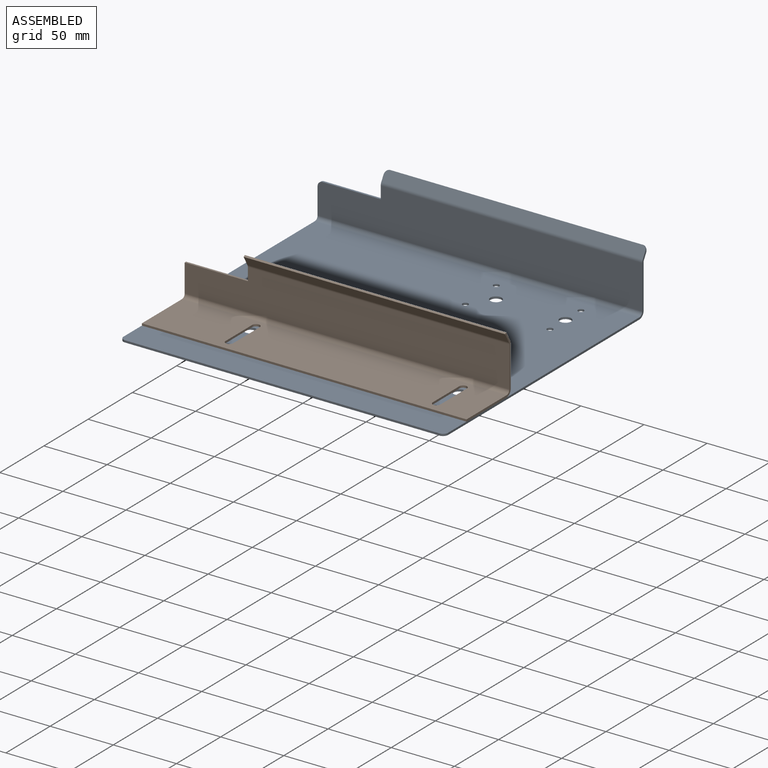
[diagram: assembled view]
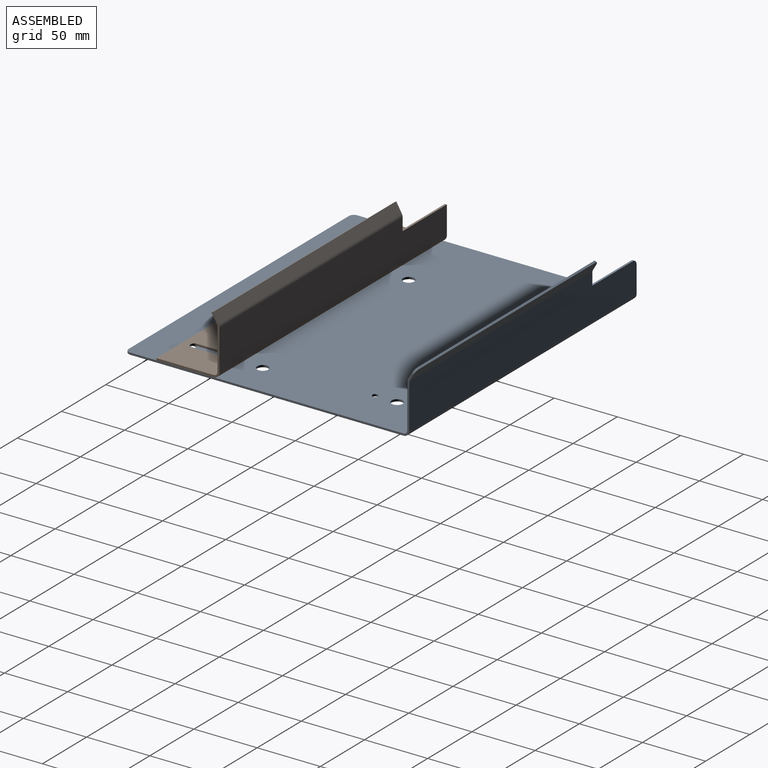
[diagram: assembled view, second angle]
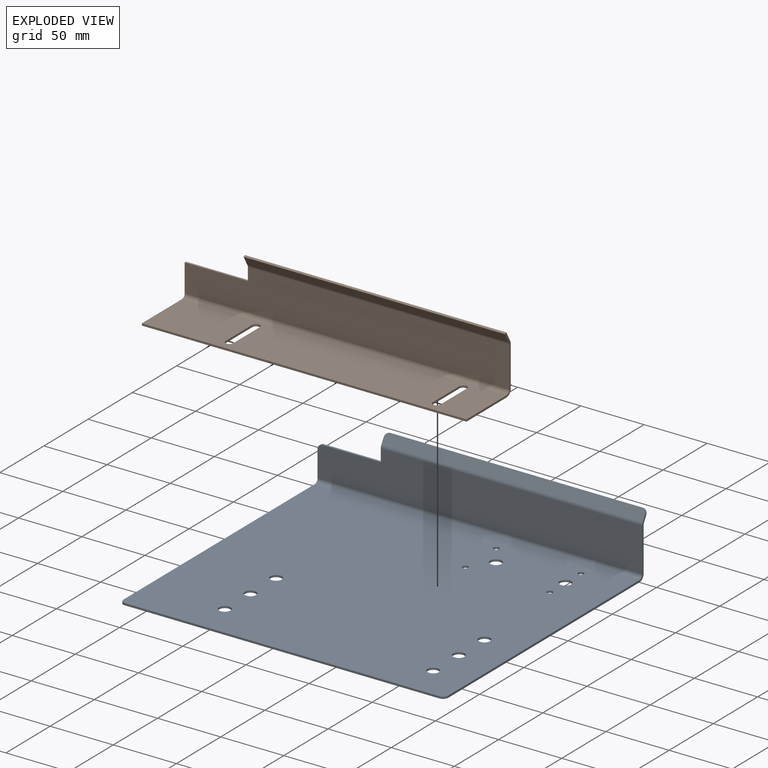
[diagram: exploded view]
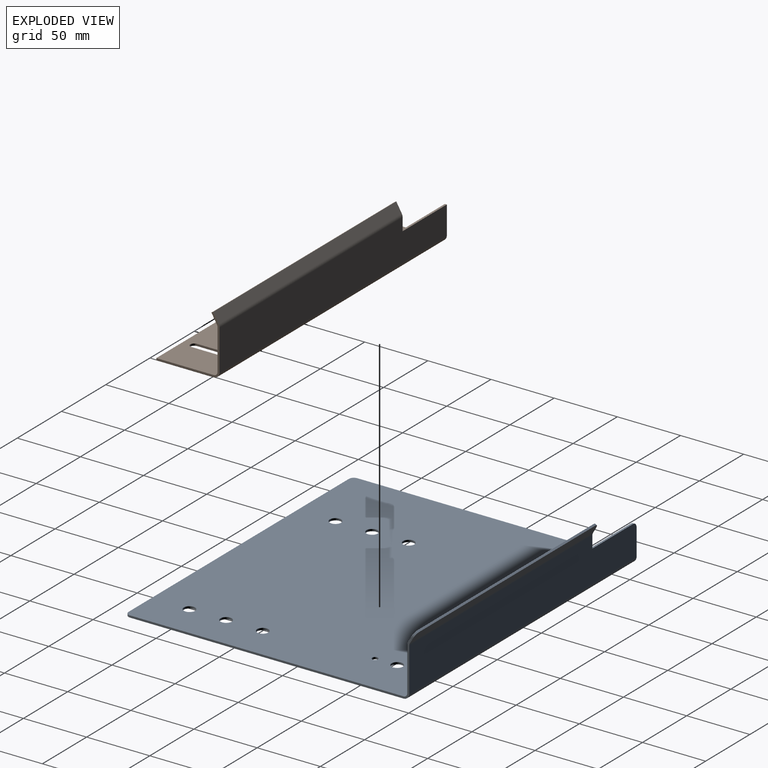
[diagram: exploded view, second angle]
ASSEMBLY  parts=2 mates=2
PART A: 41 faces, bbox 257x230x49.5 mm
  f0: plane 216.4x1.6mm, normal (-1,0,0), area 346.2mm2, adj f15,f16,f18,f38
  f1: plane 216.4x1.6mm, normal (1,0,0), area 346.2mm2, adj f15,f16,f17,f37
  f2: cylinder r=4.5mm len=9mm, axis (0,0,-1), area 45.2mm2, adj f15,f16
  f3: cylinder r=4.5mm len=9mm, axis (0,0,-1), area 45.2mm2, adj f15,f16
  f4: cylinder r=4.48mm len=8.96mm, axis (0,0,-1), area 45mm2, adj f15,f16
  f5: cylinder r=4.48mm len=8.96mm, axis (0,0,-1), area 45mm2, adj f15,f16
  f6: cylinder r=4.48mm len=8.96mm, axis (0,0,-1), area 45mm2, adj f15,f16
  f7: cylinder r=4.48mm len=8.96mm, axis (0,0,-1), area 45mm2, adj f15,f16
  f8: cylinder r=4.48mm len=8.96mm, axis (0,0,-1), area 45mm2, adj f15,f16
  f9: cylinder r=4.48mm len=8.96mm, axis (0,0,-1), area 45mm2, adj f15,f16
  f10: cylinder r=2.25mm len=4.5mm, axis (0,0,-1), area 22.6mm2, adj f15,f16
  f11: cylinder r=2.25mm len=4.5mm, axis (0,0,-1), area 22.6mm2, adj f15,f16
  f12: cylinder r=2.25mm len=4.5mm, axis (0,0,-1), area 22.6mm2, adj f15,f16
  f13: cylinder r=2.25mm len=4.5mm, axis (0,0,-1), area 22.6mm2, adj f15,f16
  f14: plane 249x1.6mm, normal (0,-1,0), area 398.4mm2, adj f15,f16,f17,f18
  f15: plane 257x220.4mm, normal (0,0,-1), area 56066.8mm2, adj f0,f1,f2,f3,f4,f5,f6,f7
  f16: plane 257x220.4mm, normal (0,0,1), area 56066.8mm2, adj f0,f1,f2,f3,f4,f5,f6,f7
  f17: cylinder r=4mm len=4mm, axis (0,0,-1), area 10.1mm2, adj f1,f14,f15,f16
  f18: cylinder r=4mm len=4mm, axis (0,0,1), area 10.1mm2, adj f0,f14,f15,f16
  f19: plane 34.6x1.6mm, normal (1,0,0), area 55.4mm2, adj f23,f24,f33,f37
  f20: plane 20.86x1.6mm, normal (-1,0,0), area 33.4mm2, adj f23,f24,f25,f38
  f21: plane 46x1.6mm, normal (0,0,1), area 73.6mm2, adj f22,f23,f24,f25
  f22: plane 9.74x1.6mm, normal (-1,0,0), area 15.6mm2, adj f21,f23,f24,f34
  f23: plane 257x34.6mm, normal (0,1,0), area 8401mm2, adj f19,f20,f21,f22,f25,f36,f39
  f24: plane 257x34.6mm, normal (0,-1,0), area 8401mm2, adj f19,f20,f21,f22,f25,f35,f40
  f25: cylinder r=4mm len=4mm, axis (0,1,0), area 10.1mm2, adj f20,f21,f23,f24
  f26: plane 199x1.39mm, normal (0,0.5,0.87), area 318.4mm2, adj f29,f30,f31,f32
  f27: plane 5.3x3.98mm, normal (1,0,0), area 8.3mm2, adj f29,f30,f32,f33
  f28: plane 5.3x3.98mm, normal (-1,0,0), area 8.3mm2, adj f29,f30,f31,f34
  f29: plane 207x7.96mm, normal (0,0.87,-0.5), area 1896.7mm2, adj f26,f27,f28,f31,f32,f36
  f30: plane 207x7.96mm, normal (0,-0.87,0.5), area 1896.7mm2, adj f26,f27,f28,f31,f32,f35
  f31: cylinder r=4mm len=4.26mm, axis (0,0.87,-0.5), area 10.1mm2, adj f26,f28,f29,f30
  f32: cylinder r=4mm len=4.26mm, axis (0,-0.87,0.5), area 10.1mm2, adj f26,f27,f29,f30
  f33: plane 2.3x2mm, normal (1,0,0), area 3.2mm2, adj f19,f27,f35,f36
  f34: plane 2.3x2mm, normal (-1,0,0), area 3.2mm2, adj f22,f28,f35,f36
  f35: cylinder r=4.6mm len=207mm, axis (1,0,0), area 498.6mm2, adj f24,f30,f33,f34
  f36: cylinder r=3mm len=207mm, axis (1,0,0), area 325.2mm2, adj f23,f29,f33,f34
  f37: plane 4.6x4.6mm, normal (1,0,0), area 9.6mm2, adj f1,f19,f39,f40
  f38: plane 4.6x4.6mm, normal (-1,0,0), area 9.6mm2, adj f0,f20,f39,f40
  f39: cylinder r=4.6mm len=257mm, axis (1,0,0), area 1857mm2, adj f15,f23,f37,f38
  f40: cylinder r=3mm len=257mm, axis (1,0,0), area 1211.1mm2, adj f16,f24,f37,f38
PART B: 32 faces, bbox 257x50x46.7 mm
  f0: plane 30x1.6mm, normal (1,0,0), area 48mm2, adj f1,f10,f11,f12
  f1: cylinder r=3mm len=6mm, axis (0,0,-1), area 15.1mm2, adj f0,f2,f11,f12
  f2: plane 30x1.6mm, normal (-1,0,0), area 48mm2, adj f1,f10,f11,f12
  f3: plane 30x1.6mm, normal (1,0,0), area 48mm2, adj f4,f9,f11,f12
  f4: cylinder r=3mm len=6mm, axis (0,0,-1), area 15.1mm2, adj f3,f5,f11,f12
  f5: plane 30x1.6mm, normal (-1,0,0), area 48mm2, adj f4,f9,f11,f12
  f6: plane 45.4x1.6mm, normal (-1,0,0), area 72.6mm2, adj f8,f11,f12,f29
  f7: plane 45.4x1.6mm, normal (1,0,0), area 72.6mm2, adj f8,f11,f12,f28
  f8: plane 257x1.6mm, normal (0,-1,0), area 411.2mm2, adj f6,f7,f11,f12
  f9: cylinder r=3mm len=6mm, axis (0,0,-1), area 15.1mm2, adj f3,f5,f11,f12
  f10: cylinder r=3mm len=6mm, axis (0,0,-1), area 15.1mm2, adj f0,f2,f11,f12
  f11: plane 257x45.4mm, normal (0,0,-1), area 11251.3mm2, adj f0,f1,f2,f3,f4,f5,f6,f7
  f12: plane 257x45.4mm, normal (0,0,1), area 11251.3mm2, adj f0,f1,f2,f3,f4,f5,f6,f7
  f13: plane 10.11x1.6mm, normal (-1,0,0), area 16.2mm2, adj f16,f17,f18,f25
  f14: plane 32.17x1.6mm, normal (1,0,0), area 51.5mm2, adj f17,f18,f24,f28
  f15: plane 22.06x1.6mm, normal (-1,0,0), area 35.3mm2, adj f16,f17,f18,f29
  f16: plane 50x1.6mm, normal (0,0,1), area 80mm2, adj f13,f15,f17,f18
  f17: plane 257x32.17mm, normal (0,1,0), area 7761.7mm2, adj f13,f14,f15,f16,f26,f30
  f18: plane 257x32.17mm, normal (0,-1,0), area 7761.7mm2, adj f13,f14,f15,f16,f27,f31
  f19: plane 207x1.39mm, normal (0,-0.5,0.87), area 331.2mm2, adj f20,f21,f22,f23
  f20: plane 8.39x5.77mm, normal (1,0,0), area 14mm2, adj f19,f22,f23,f24
  f21: plane 8.39x5.77mm, normal (-1,0,0), area 14mm2, adj f19,f22,f23,f25
  f22: plane 207x7.59mm, normal (0,0.87,0.5), area 1814.9mm2, adj f19,f20,f21,f26
  f23: plane 207x7.59mm, normal (0,-0.87,-0.5), area 1814.9mm2, adj f19,f20,f21,f27
  f24: plane 2.3x2mm, normal (1,0,0), area 3.2mm2, adj f14,f20,f26,f27
  f25: plane 2.3x2mm, normal (-1,0,0), area 3.2mm2, adj f13,f21,f26,f27
  f26: cylinder r=4.6mm len=207mm, axis (1,0,0), area 498.6mm2, adj f17,f22,f24,f25
  f27: cylinder r=3mm len=207mm, axis (1,0,0), area 325.2mm2, adj f18,f23,f24,f25
  f28: plane 4.6x4.6mm, normal (1,0,0), area 9.6mm2, adj f7,f14,f30,f31
  f29: plane 4.6x4.6mm, normal (-1,0,0), area 9.6mm2, adj f6,f15,f30,f31
  f30: cylinder r=4.6mm len=257mm, axis (1,0,0), area 1857mm2, adj f11,f17,f28,f29
  f31: cylinder r=3mm len=257mm, axis (1,0,0), area 1211.1mm2, adj f12,f18,f28,f29
PLACE A t=(-164.07,-129.5,-76.93)mm
PLACE B t=(-164.07,-104.74,-75.33)mm
MATE planar B.f11 <-> A.f16  axis (0,0,-1) through (-36.18,-82.09,-75.33)mm
MATE planar A.f1 <-> B.f7  axis (1,0,0) through (92.93,-17.3,-76.13)mm
